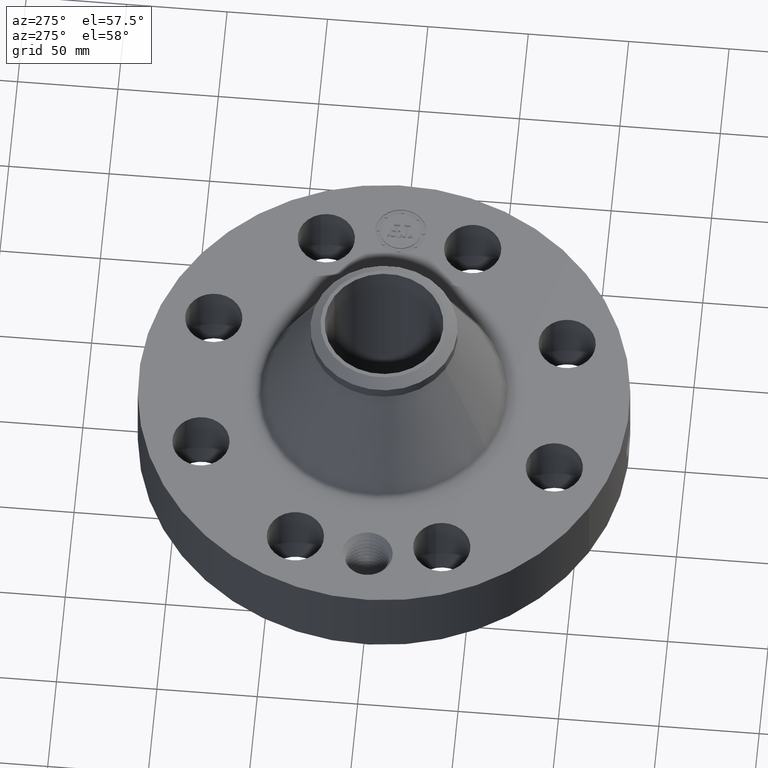
[diagram: clean part render]
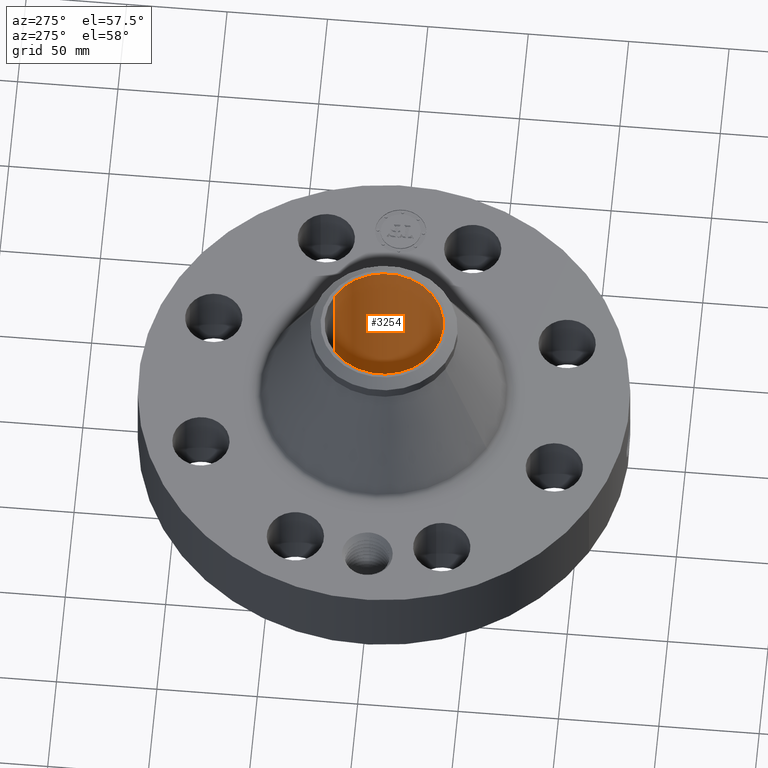
[diagram: same view with one face highlighted and labeled with its STEP entity id]
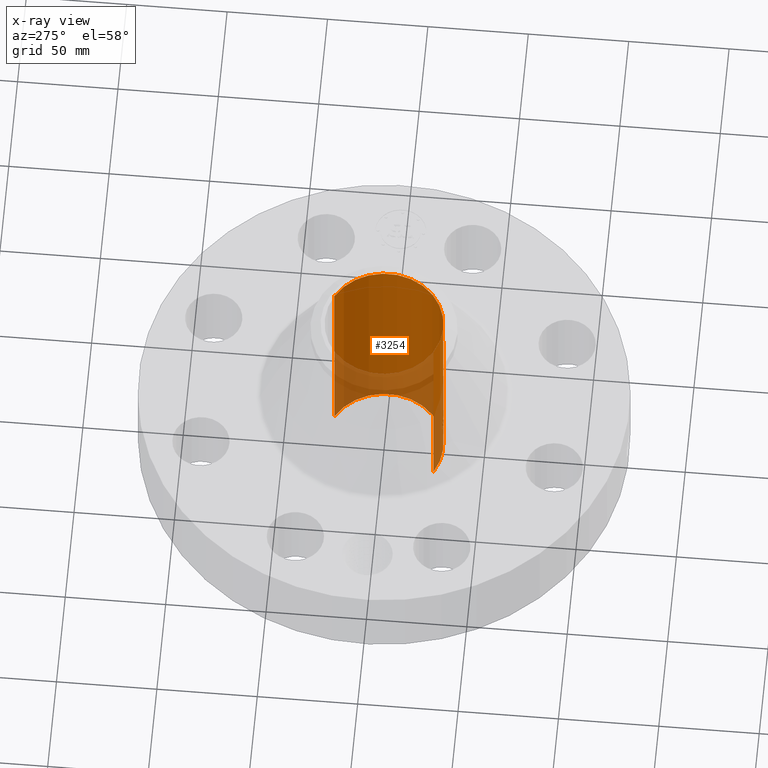
[diagram: x-ray of the same camera — body ghosted, the highlighted face saturated]
A machine part, auxiliary view. The second image highlights one B-rep face of the part: STEP entity #3254.
The next image is the same camera in x-ray: the body ghosted, the highlighted face saturated — about 29% of this face is hidden behind the body in this view.
In plain terms, the highlighted cylindrical surface (partial cylindrical patch) has radius 29.5021 mm, axis along (0, 0, -1).
Its self-contained STEP definition (entity closure, byte-faithful):
#2397=AXIS2_PLACEMENT_3D('Circle Axis2P3D',#2395,#2396,$) ;
#3185=AXIS2_PLACEMENT_3D('Cylinder Axis2P3D',#3182,#3183,#3184) ;
#3189=AXIS2_PLACEMENT_3D('Circle Axis2P3D',#3187,#3188,$) ;
#2395=CARTESIAN_POINT('Axis2P3D Location',(0.,0.,0.)) ;
#2399=CARTESIAN_POINT('Vertex',(0.556852763091,1.01931214564,-4.19611851827E-015)) ;
#2401=CARTESIAN_POINT('Vertex',(-0.556852763091,-1.01931214564,-4.19611851827E-015)) ;
#3182=CARTESIAN_POINT('Axis2P3D Location',(0.,0.,2.18500000001)) ;
#3187=CARTESIAN_POINT('Axis2P3D Location',(0.,0.,4.37000000002)) ;
#3191=CARTESIAN_POINT('Vertex',(0.556852763091,1.01931214564,4.37000000002)) ;
#3193=CARTESIAN_POINT('Vertex',(-0.556852763091,-1.01931214564,4.37000000002)) ;
#3196=CARTESIAN_POINT('Line Origine',(0.556852763091,1.01931214564,2.18500000001)) ;
#3201=CARTESIAN_POINT('Line Origine',(-0.556852763091,-1.01931214564,2.18500000001)) ;
#3213=CARTESIAN_POINT('Control Point',(0.109697820237,-1.15630819345,0.880071807678)) ;
#3214=CARTESIAN_POINT('Control Point',(0.103060989336,-1.15693782307,0.867923170204)) ;
#3215=CARTESIAN_POINT('Control Point',(0.0947448230795,-1.15767872447,0.856697749078)) ;
#3216=CARTESIAN_POINT('Control Point',(0.0849182887574,-1.15846635587,0.846700913933)) ;
#3217=CARTESIAN_POINT('Control Point',(0.0516886767805,-1.16070631198,0.821187222257)) ;
#3218=CARTESIAN_POINT('Control Point',(0.00989996083232,-1.1619951466,0.810631339403)) ;
#3219=CARTESIAN_POINT('Control Point',(-0.0193347640346,-1.16185763576,0.811705073158)) ;
#3220=CARTESIAN_POINT('Control Point',(-0.0602547442588,-1.16026013349,0.825289990188)) ;
#3221=CARTESIAN_POINT('Control Point',(-0.0915436738515,-1.15795237812,0.85318590572)) ;
#3222=CARTESIAN_POINT('Control Point',(-0.100627251516,-1.15717313002,0.86389976455)) ;
#3223=CARTESIAN_POINT('Control Point',(-0.120582805509,-1.15530347133,0.895468571033)) ;
#3224=CARTESIAN_POINT('Control Point',(-0.128082059404,-1.15440542413,0.93273019528)) ;
#3225=CARTESIAN_POINT('Control Point',(-0.12718750833,-1.15451484049,0.95675483021)) ;
#3226=CARTESIAN_POINT('Control Point',(-0.120786722983,-1.15525620016,0.979630092006)) ;
#3227=CARTESIAN_POINT('Control Point',(-0.109697820237,-1.15630819345,0.99992819233)) ;
#3228=CARTESIAN_POINT('Vertex',(0.109697820237,-1.15630819345,0.880071807678)) ;
#3230=CARTESIAN_POINT('Vertex',(-0.109697820237,-1.15630819345,0.99992819233)) ;
#3234=CARTESIAN_POINT('Control Point',(-0.109697820237,-1.15630819345,0.99992819233)) ;
#3235=CARTESIAN_POINT('Control Point',(-0.103060989339,-1.15693782307,1.0120768298)) ;
#3236=CARTESIAN_POINT('Control Point',(-0.0947448230863,-1.15767872447,1.02330225092)) ;
#3237=CARTESIAN_POINT('Control Point',(-0.084918288749,-1.15846635587,1.03329908608)) ;
#3238=CARTESIAN_POINT('Control Point',(-0.0516886767754,-1.16070631198,1.05881277775)) ;
#3239=CARTESIAN_POINT('Control Point',(-0.00989996083177,-1.1619951466,1.0693686606)) ;
#3240=CARTESIAN_POINT('Control Point',(0.0193347640326,-1.16185763576,1.06829492685)) ;
#3241=CARTESIAN_POINT('Control Point',(0.0602547442571,-1.16026013349,1.05471000982)) ;
#3242=CARTESIAN_POINT('Control Point',(0.0915436738502,-1.15795237812,1.02681409429)) ;
#3243=CARTESIAN_POINT('Control Point',(0.100627251516,-1.15717313002,1.01610023546)) ;
#3244=CARTESIAN_POINT('Control Point',(0.120582805508,-1.15530347133,0.984531428975)) ;
#3245=CARTESIAN_POINT('Control Point',(0.128082059404,-1.15440542413,0.947269804729)) ;
#3246=CARTESIAN_POINT('Control Point',(0.12718750833,-1.15451484049,0.923245169797)) ;
#3247=CARTESIAN_POINT('Control Point',(0.120786722983,-1.15525620016,0.900369908002)) ;
#3248=CARTESIAN_POINT('Control Point',(0.109697820237,-1.15630819345,0.880071807678)) ;
#2396=DIRECTION('Axis2P3D Direction',(0.,0.,-0.0393700787402)) ;
#3183=DIRECTION('Axis2P3D Direction',(0.,0.,-0.0393700787402)) ;
#3184=DIRECTION('Axis2P3D XDirection',(-0.0188750212049,-0.0345504945626,0.)) ;
#3188=DIRECTION('Axis2P3D Direction',(0.,0.,-0.0393700787402)) ;
#3197=DIRECTION('Vector Direction',(0.,0.,-0.0393700787402)) ;
#3202=DIRECTION('Vector Direction',(0.,0.,-0.0393700787402)) ;
#3198=VECTOR('Line Direction',#3197,0.0393700787402) ;
#3203=VECTOR('Line Direction',#3202,0.0393700787402) ;
#3207=ORIENTED_EDGE('',*,*,#3195,.F.) ;
#3208=ORIENTED_EDGE('',*,*,#3200,.T.) ;
#3209=ORIENTED_EDGE('',*,*,#2403,.T.) ;
#3210=ORIENTED_EDGE('',*,*,#3205,.F.) ;
#3251=ORIENTED_EDGE('',*,*,#3232,.F.) ;
#3252=ORIENTED_EDGE('',*,*,#3249,.F.) ;
#3253=FACE_BOUND('',#3250,.T.) ;
#3254=ADVANCED_FACE('PartBody',(#3211,#3253),#3186,.F.) ;
#3212=B_SPLINE_CURVE_WITH_KNOTS('',5,(#3213,#3214,#3215,#3216,#3217,#3218,#3219,#3220,#3221,#3222,#3223,#3224,#3225,#3226,#3227),.UNSPECIFIED.,.F.,.U.,(6,3,3,3,6),(0.,2.48889771083,7.46397860265,9.95771115066,14.1161935761),.UNSPECIFIED.) ;
#3233=B_SPLINE_CURVE_WITH_KNOTS('',5,(#3234,#3235,#3236,#3237,#3238,#3239,#3240,#3241,#3242,#3243,#3244,#3245,#3246,#3247,#3248),.UNSPECIFIED.,.F.,.U.,(6,3,3,3,6),(0.,2.48889770982,7.46397860174,9.95771114967,14.1161935751),.UNSPECIFIED.) ;
#2398=CIRCLE('generated circle',#2397,1.1615) ;
#3190=CIRCLE('generated circle',#3189,1.1615) ;
#3186=CYLINDRICAL_SURFACE('generated cylinder',#3185,1.1615) ;
#2403=EDGE_CURVE('',#2400,#2402,#2398,.T.) ;
#3195=EDGE_CURVE('',#3192,#3194,#3190,.T.) ;
#3200=EDGE_CURVE('',#3192,#2400,#3199,.T.) ;
#3205=EDGE_CURVE('',#3194,#2402,#3204,.T.) ;
#3232=EDGE_CURVE('',#3229,#3231,#3212,.T.) ;
#3249=EDGE_CURVE('',#3231,#3229,#3233,.T.) ;
#3206=EDGE_LOOP('',(#3207,#3208,#3209,#3210)) ;
#3250=EDGE_LOOP('',(#3251,#3252)) ;
#3211=FACE_OUTER_BOUND('',#3206,.T.) ;
#3199=LINE('Line',#3196,#3198) ;
#3204=LINE('Line',#3201,#3203) ;
#2400=VERTEX_POINT('',#2399) ;
#2402=VERTEX_POINT('',#2401) ;
#3192=VERTEX_POINT('',#3191) ;
#3194=VERTEX_POINT('',#3193) ;
#3229=VERTEX_POINT('',#3228) ;
#3231=VERTEX_POINT('',#3230) ;